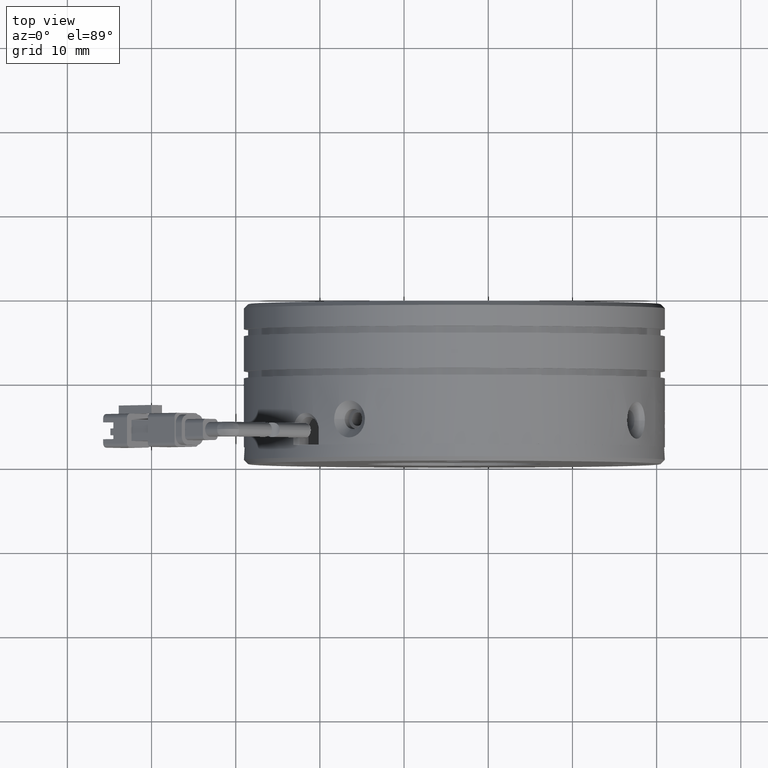
[diagram: clean part render]
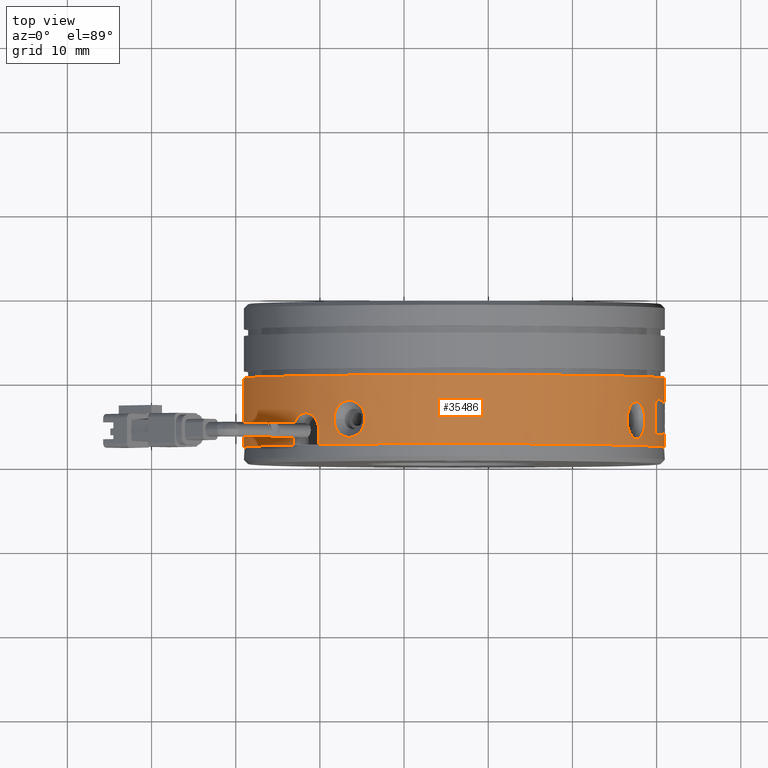
[diagram: same view with one face highlighted and labeled with its STEP entity id]
A machine part, top view. The second image highlights one B-rep face of the part: STEP entity #35486.
In plain terms, the highlighted cylindrical surface (partial cylindrical patch) has radius 25 mm, axis along (0, 1, -0).
Its self-contained STEP definition (entity closure, byte-faithful):
#281 = CARTESIAN_POINT ( 'NONE',  ( 16.49969370802145000, 5.450704225539627900, 14.27249149179714400 ) ) ;
#304 = CARTESIAN_POINT ( 'NONE',  ( -23.15365887617074800, 3.868234147060709100, 16.09738263974287900 ) ) ;
#309 = CARTESIAN_POINT ( 'NONE',  ( 20.87705476061862300, 5.609102189260054800, 2.201566818622008100 ) ) ;
#412 = B_SPLINE_CURVE_WITH_KNOTS ( 'NONE', 3,
 ( #52025, #47149, #42343, #32608, #23208, #13627 ),
 .UNSPECIFIED., .F., .F.,
 ( 4, 2, 4 ),
 ( 0.0000000000000000000, 0.0004568782627625742600, 0.0009137565255251485100 ),
 .UNSPECIFIED. ) ;
#420 = CARTESIAN_POINT ( 'NONE',  ( 20.87788596370502600, 5.418457956970035700, 2.192164721418087000 ) ) ;
#470 = CARTESIAN_POINT ( 'NONE',  ( 17.69360556899350100, 7.368433264077463500, 12.38088597118873800 ) ) ;
#492 = CARTESIAN_POINT ( 'NONE',  ( 20.88036465345308200, 5.228247373744157000, 2.164601830254745600 ) ) ;
#497 = CARTESIAN_POINT ( 'NONE',  ( -22.08857016642111400, 5.902398823811314100, 17.28455030252884900 ) ) ;
#502 = CARTESIAN_POINT ( 'NONE',  ( 20.88780491674813400, 4.957567025291618600, 2.076590511724736300 ) ) ;
#591 = CARTESIAN_POINT ( 'NONE',  ( 20.89088161088547200, 4.870615161154642400, 2.039669229672254100 ) ) ;
#643 = CARTESIAN_POINT ( 'NONE',  ( 20.89836283244108000, 4.705213480888145800, 1.946119186430250500 ) ) ;
#686 = CARTESIAN_POINT ( 'NONE',  ( 18.57482277094220200, 5.730151586680232600, 10.68698712256187900 ) ) ;
#712 = CARTESIAN_POINT ( 'NONE',  ( -20.34431649549471300, 4.930997315751547200, 18.93971509785972900 ) ) ;
#722 = CARTESIAN_POINT ( 'NONE',  ( 20.91228741036614000, 4.490760484947240400, 1.759294332533904300 ) ) ;
#807 = CARTESIAN_POINT ( 'NONE',  ( 20.91751750988560600, 4.430123787750209100, 1.684199697188841100 ) ) ;
#858 = CARTESIAN_POINT ( 'NONE',  ( 20.92789667332636900, 4.330325048378557400, 1.522707774882770600 ) ) ;
#861 = CARTESIAN_POINT ( 'NONE',  ( 20.87940407189934800, 5.976962359149793800, 2.175451335830711000 ) ) ;
#900 = ORIENTED_EDGE ( 'NONE', *, *, #59122, .T. ) ;
#938 = CARTESIAN_POINT ( 'NONE',  ( 20.93302557164789200, 4.290838910140260000, 1.436754254127402800 ) ) ;
#950 = CARTESIAN_POINT ( 'NONE',  ( 20.94762802960901700, 4.198023623593004800, 1.166031697580403300 ) ) ;
#1002 = CARTESIAN_POINT ( 'NONE',  ( -17.72859245220099200, 6.809449854590798900, 20.91036400926800500 ) ) ;
#1030 = CARTESIAN_POINT ( 'NONE',  ( 20.95579129067566600, 4.172427619848157600, 0.9775343910017793000 ) ) ;
#1130 = CARTESIAN_POINT ( 'NONE',  ( 20.80632795550790700, 4.322353943957555300, 2.892143759068543900 ) ) ;
#1133 = CARTESIAN_POINT ( 'NONE',  ( 20.96179658823153200, 4.167271785106379400, 0.7868197189736734200 ) ) ;
#1152 = CARTESIAN_POINT ( 'NONE',  ( 20.69173769991640900, 7.727101298061381100, 3.747320195376608400 ) ) ;
#1201 = CARTESIAN_POINT ( 'NONE',  ( -15.28608940092456200, 6.812443851178450400, 22.32074930630384900 ) ) ;
#1425 = EDGE_CURVE ( 'NONE', #18912, #13572, #40632, .T. ) ;
#2008 =( BOUNDED_CURVE ( )  B_SPLINE_CURVE ( 3, ( #53686, #24838, #29636, #1130 ),
 .UNSPECIFIED., .F., .T. ) 
 B_SPLINE_CURVE_WITH_KNOTS ( ( 4, 4 ),
 ( 1.214634375456130600, 1.216045608819824400 ),
 .UNSPECIFIED. ) 
 CURVE ( )  GEOMETRIC_REPRESENTATION_ITEM ( )  RATIONAL_B_SPLINE_CURVE ( ( 1.000000000000000000, 0.9999998340350396700, 0.9999998340350396700, 1.000000000000000000 ) ) 
 REPRESENTATION_ITEM ( '' )  );
#2038 = CARTESIAN_POINT ( 'NONE',  ( -15.37753228747576600, 3.434670912525519300, 22.27446430140437500 ) ) ;
#2078 = ORIENTED_EDGE ( 'NONE', *, *, #7724, .T. ) ;
#2248 = CARTESIAN_POINT ( 'NONE',  ( -17.88906340043358500, 3.731200340252754700, 20.80432627868077600 ) ) ;
#2647 = EDGE_CURVE ( 'NONE', #43154, #57259, #412, .T. ) ;
#3278 = B_SPLINE_CURVE_WITH_KNOTS ( 'NONE', 3,
 ( #39852, #24547, #861, #34214, #5623, #39087, #10383, #43925, #15179, #48774, #19977, #53609, #24764, #58404 ),
 .UNSPECIFIED., .F., .F.,
 ( 4, 2, 2, 2, 2, 2, 4 ),
 ( 0.0000000000000000000, 0.0005493779126704128600, 0.0008240668690056192300, 0.001098755825340825500, 0.001373444781676031600, 0.001648133738011238000, 0.002197511650681650600 ),
 .UNSPECIFIED. ) ;
#3579 = CARTESIAN_POINT ( 'NONE',  ( 20.97418136128692400, 4.343992379600552000, 3.903127820947816000E-015 ) ) ;
#3807 = B_SPLINE_CURVE_WITH_KNOTS ( 'NONE', 3,
 ( #32137, #56159, #36984, #8330, #41859, #13145, #46662, #17913, #51537, #22721 ),
 .UNSPECIFIED., .F., .F.,
 ( 4, 2, 2, 2, 4 ),
 ( 0.0000000000000000000, 0.0003179315198934416900, 0.0006358630397868833900, 0.0009537945596803250800, 0.001271726079573766800 ),
 .UNSPECIFIED. ) ;
#4100 = CARTESIAN_POINT ( 'NONE',  ( 19.95392310740203700, 7.586409392574980300, 7.069950153807219800 ) ) ;
#4230 = CARTESIAN_POINT ( 'NONE',  ( 20.97418136128692400, 2.168234147060708900, 3.422791846577617100E-015 ) ) ;
#4316 = CARTESIAN_POINT ( 'NONE',  ( -29.02581863871307600, 10.36823414706071000, 3.503328269843786200E-016 ) ) ;
#4452 = CARTESIAN_POINT ( 'NONE',  ( 20.71592161918375300, 3.552825996118543100, 3.585772028101073000 ) ) ;
#4792 = VERTEX_POINT ( 'NONE', #12742 ) ;
#5051 = CARTESIAN_POINT ( 'NONE',  ( 16.55145480666952200, 5.863545360402256700, 14.19783350189262300 ) ) ;
#5075 = CARTESIAN_POINT ( 'NONE',  ( -23.14449475503660700, 4.146309296130733700, 16.10828980770029200 ) ) ;
#5122 =( BOUNDED_CURVE ( )  B_SPLINE_CURVE ( 3, ( #53712, #58504, #29667, #1152 ),
 .UNSPECIFIED., .F., .F. ) 
 B_SPLINE_CURVE_WITH_KNOTS ( ( 4, 4 ),
 ( 4.205308057915881500, 4.323123765252399900 ),
 .UNSPECIFIED. ) 
 CURVE ( )  GEOMETRIC_REPRESENTATION_ITEM ( )  RATIONAL_B_SPLINE_CURVE ( ( 1.000000000000000000, 0.9988436227155569300, 0.9988436227155569300, 1.000000000000000000 ) ) 
 REPRESENTATION_ITEM ( '' )  );
#5259 = CARTESIAN_POINT ( 'NONE',  ( 17.89809453607084700, 7.295351753473156000, 12.01504051928647400 ) ) ;
#5280 = CARTESIAN_POINT ( 'NONE',  ( -21.80205991490096200, 5.968182139651466000, 17.57909132958983300 ) ) ;
#5467 = CARTESIAN_POINT ( 'NONE',  ( 18.60288020821306500, 5.310569730539548100, 10.62741683077895000 ) ) ;
#5497 = CARTESIAN_POINT ( 'NONE',  ( -20.20898563651015300, 4.552142898576375900, 19.05539604868941000 ) ) ;
#5504 = CARTESIAN_POINT ( 'NONE',  ( 16.49214373681054000, 5.168234147060708500, 14.28331964063667500 ) ) ;
#5623 = CARTESIAN_POINT ( 'NONE',  ( 20.88892165538288400, 6.329555947993899400, 2.063394248411451600 ) ) ;
#5654 = CARTESIAN_POINT ( 'NONE',  ( -20.12320127845588400, 2.168234147060708900, 19.12784023745772900 ) ) ;
#5745 = CARTESIAN_POINT ( 'NONE',  ( -17.44719287880389300, 7.065348713122259200, 21.09217571009375200 ) ) ;
#5950 = CARTESIAN_POINT ( 'NONE',  ( -15.03403147190620200, 6.493794031463402800, 22.44604391960373800 ) ) ;
#6117 = EDGE_CURVE ( 'NONE', #57259, #57958, #35498, .T. ) ;
#6603 = CARTESIAN_POINT ( 'NONE',  ( -14.65323546949505000, 5.168234147060708500, 22.62869884692472100 ) ) ;
#6810 = CARTESIAN_POINT ( 'NONE',  ( -15.69198677719024100, 3.199914697282051400, 22.11146839832291300 ) ) ;
#6830 = CARTESIAN_POINT ( 'NONE',  ( -4.025818638713078100, 2.168234147060708900, 3.557538378468061400E-016 ) ) ;
#6968 = CARTESIAN_POINT ( 'NONE',  ( 19.83583963367515000, 6.771028605337383200, 7.457966511842655200 ) ) ;
#7010 = CARTESIAN_POINT ( 'NONE',  ( -18.08497988603602000, 4.080495389426645600, 20.67233954934540600 ) ) ;
#7472 = VERTEX_POINT ( 'NONE', #33112 ) ;
#7724 = EDGE_CURVE ( 'NONE', #52471, #45137, #32704, .T. ) ;
#8299 = EDGE_CURVE ( 'NONE', #62045, #34650, #37417, .T. ) ;
#8330 = CARTESIAN_POINT ( 'NONE',  ( 20.75139536719815000, 7.668332172564756600, 3.331724673585955800 ) ) ;
#8335 = CARTESIAN_POINT ( 'NONE',  ( 20.97330987174664300, 4.233753026814115500, 0.2478836960730578800 ) ) ;
#8819 = EDGE_CURVE ( 'NONE', #11272, #34650, #20738, .T. ) ;
#8870 = CARTESIAN_POINT ( 'NONE',  ( 20.04813707135067000, 7.692719300971801600, 6.742331257744537800 ) ) ;
#9032 = CARTESIAN_POINT ( 'NONE',  ( 20.80222173950301100, 6.975325470166869700, 2.927184821235513800 ) ) ;
#9547 = LINE ( 'NONE', #11063, #34994 ) ;
#9820 = CARTESIAN_POINT ( 'NONE',  ( 16.64551674493932500, 6.252678155458100100, 14.06063607984862600 ) ) ;
#9839 = CARTESIAN_POINT ( 'NONE',  ( -23.10852683928941400, 4.417320938623777100, 16.15088309354623100 ) ) ;
#9848 = CARTESIAN_POINT ( 'NONE',  ( 19.84666469512557500, 4.270296655339604000, 7.423243191193201100 ) ) ;
#10021 = CARTESIAN_POINT ( 'NONE',  ( 18.08383636508810000, 7.138643686605880700, 11.66961234026856800 ) ) ;
#10048 = CARTESIAN_POINT ( 'NONE',  ( -21.50579687645873500, 5.954864241322856500, 17.87369181861150800 ) ) ;
#10251 = CARTESIAN_POINT ( 'NONE',  ( -20.13436099945260700, 4.148847786742488900, 19.11846367888502100 ) ) ;
#10383 = CARTESIAN_POINT ( 'NONE',  ( 20.90004805935840100, 6.570018431110972800, 1.924858273511739200 ) ) ;
#10527 = CARTESIAN_POINT ( 'NONE',  ( -17.01449535450793600, 7.307067707344280900, 21.36259188941210500 ) ) ;
#10644 = CARTESIAN_POINT ( 'NONE',  ( 19.83583963367515000, 6.771028605337383200, 7.457966511842655200 ) ) ;
#10738 = CARTESIAN_POINT ( 'NONE',  ( -14.84080856438471200, 6.128202926223373500, 22.53971264050763800 ) ) ;
#11063 = CARTESIAN_POINT ( 'NONE',  ( -23.15365887617074800, 2.168234147060708900, 16.09738263974287500 ) ) ;
#11272 = VERTEX_POINT ( 'NONE', #55646 ) ;
#11298 = EDGE_CURVE ( 'NONE', #45137, #12806, #46679, .T. ) ;
#11603 = CARTESIAN_POINT ( 'NONE',  ( -16.28003248483973300, 2.968638605293177700, 21.79250202241476900 ) ) ;
#11791 = CARTESIAN_POINT ( 'NONE',  ( -18.22319937025753600, 4.471282925419449900, 20.57758570320166000 ) ) ;
#11967 = VECTOR ( 'NONE', #14107, 1000.000000000000000 ) ;
#12070 = VERTEX_POINT ( 'NONE', #29656 ) ;
#12742 = CARTESIAN_POINT ( 'NONE',  ( -18.30913827934658000, 5.168234147060708500, 20.51796237552582300 ) ) ;
#12806 = VERTEX_POINT ( 'NONE', #9848 ) ;
#13110 = CARTESIAN_POINT ( 'NONE',  ( 18.60288020821306500, 5.168234147060708500, 10.62741683077895000 ) ) ;
#13145 = CARTESIAN_POINT ( 'NONE',  ( 20.78492041092901100, 7.484367568029011200, 3.071442315036851500 ) ) ;
#13151 = AXIS2_PLACEMENT_3D ( 'NONE', #19929, #19849, #19837 ) ;
#13154 = CARTESIAN_POINT ( 'NONE',  ( 20.96608749068509100, 4.168909826900442500, 0.6505503590424089900 ) ) ;
#13227 = ORIENTED_EDGE ( 'NONE', *, *, #11298, .T. ) ;
#13251 = EDGE_LOOP ( 'NONE', ( #60019, #900 ) ) ;
#13354 = CARTESIAN_POINT ( 'NONE',  ( -4.025818638713078100, 2.168234147060708900, 3.557538378468061400E-016 ) ) ;
#13480 = CARTESIAN_POINT ( 'NONE',  ( 19.83532042578147500, 6.890640955822804300, 7.459627710148071200 ) ) ;
#13572 = VERTEX_POINT ( 'NONE', #5504 ) ;
#13590 = VERTEX_POINT ( 'NONE', #60801 ) ;
#13627 = CARTESIAN_POINT ( 'NONE',  ( 20.97418136128692400, 6.800444789837970700, -1.532628191025509100E-012 ) ) ;
#13826 = CARTESIAN_POINT ( 'NONE',  ( 20.80649230467259500, 4.215498894140441000, 2.890732645759488000 ) ) ;
#13946 = CARTESIAN_POINT ( 'NONE',  ( 20.97418136128692400, 2.168234147060708900, 3.422791846577617100E-015 ) ) ;
#14107 = DIRECTION ( 'NONE',  ( -0.0000000000000000000, -1.000000000000000000, 0.0000000000000000000 ) ) ;
#14345 = FACE_BOUND ( 'NONE', #31426, .T. ) ;
#14608 = CARTESIAN_POINT ( 'NONE',  ( 16.77801819992114900, 6.604063016174735300, 13.86397150801986200 ) ) ;
#14639 = CARTESIAN_POINT ( 'NONE',  ( -23.01015800993929600, 4.807389378292063100, 16.26646422124983000 ) ) ;
#14665 = CARTESIAN_POINT ( 'NONE',  ( -20.12320127845588400, 3.868234147060709100, 19.12784023745772900 ) ) ;
#14722 = VERTEX_POINT ( 'NONE', #24091 ) ;
#14815 = CARTESIAN_POINT ( 'NONE',  ( 18.24687894992360200, 6.904954522413447600, 11.35517977204551300 ) ) ;
#14836 = CARTESIAN_POINT ( 'NONE',  ( -21.21419978033957300, 5.863410749034312800, 18.15423479801650300 ) ) ;
#14854 = EDGE_CURVE ( 'NONE', #57958, #50235, #57689, .T. ) ;
#14951 = ORIENTED_EDGE ( 'NONE', *, *, #29027, .T. ) ;
#15048 = CARTESIAN_POINT ( 'NONE',  ( -20.12320127845588400, 3.868234147060709100, 19.12784023745772900 ) ) ;
#15079 = ORIENTED_EDGE ( 'NONE', *, *, #14854, .T. ) ;
#15109 = CARTESIAN_POINT ( 'NONE',  ( -18.29831013050709700, 5.450704225538672200, 20.52551234673670100 ) ) ;
#15179 = CARTESIAN_POINT ( 'NONE',  ( 20.91435893451921400, 6.769918045886480900, 1.730171387064613600 ) ) ;
#15313 = CARTESIAN_POINT ( 'NONE',  ( -16.40670460990310200, 7.368433264074939300, 21.71942420770584200 ) ) ;
#15505 = EDGE_CURVE ( 'NONE', #25540, #18153, #40101, .T. ) ;
#15521 = CARTESIAN_POINT ( 'NONE',  ( -14.71280576127783800, 5.730151586679099300, 22.60064140965391400 ) ) ;
#16176 = CARTESIAN_POINT ( 'NONE',  ( -14.71202863587811500, 4.609861580171056500, 22.60100852563584400 ) ) ;
#16367 = CARTESIAN_POINT ( 'NONE',  ( -16.76751636410810800, 2.982704891746041900, 21.50972586181012100 ) ) ;
#16469 = CARTESIAN_POINT ( 'NONE',  ( -4.025818638713078100, 2.168234147060708900, 3.557538378468061400E-016 ) ) ;
#16503 = AXIS2_PLACEMENT_3D ( 'NONE', #6830, #21182, #45355 ) ;
#16550 = CARTESIAN_POINT ( 'NONE',  ( 20.09562333638090000, 3.518514071261344500, 6.569325463255291100 ) ) ;
#16565 = CARTESIAN_POINT ( 'NONE',  ( -18.29809037719375200, 4.883324966650524100, 20.52566552656925900 ) ) ;
#16737 = CARTESIAN_POINT ( 'NONE',  ( 20.55520230648676600, 3.540260419427072100, 4.662221287666193700 ) ) ;
#16871 = CARTESIAN_POINT ( 'NONE',  ( 20.35347558441148800, 3.529222568154792400, 5.622536013743803600 ) ) ;
#16902 = ORIENTED_EDGE ( 'NONE', *, *, #20971, .T. ) ;
#17823 = DIRECTION ( 'NONE',  ( 0.0000000000000000000, 1.000000000000000000, -0.0000000000000000000 ) ) ;
#17913 = CARTESIAN_POINT ( 'NONE',  ( 20.80049623866927200, 7.189291134846583600, 2.941997479811896600 ) ) ;
#18128 = DIRECTION ( 'NONE',  ( -1.000000000000000000, 0.0000000000000000000, -8.883952601346225300E-016 ) ) ;
#18153 = VERTEX_POINT ( 'NONE', #37601 ) ;
#18299 = CARTESIAN_POINT ( 'NONE',  ( -20.12320127845588400, 2.168234147060708900, 19.12784023745772900 ) ) ;
#18526 = CARTESIAN_POINT ( 'NONE',  ( 20.70010523892593200, 3.551589418287440100, 3.691705350810279300 ) ) ;
#18912 = VERTEX_POINT ( 'NONE', #13110 ) ;
#19400 = CARTESIAN_POINT ( 'NONE',  ( 16.94228590830314500, 6.901797381598576900, 13.61439511632595500 ) ) ;
#19426 = CARTESIAN_POINT ( 'NONE',  ( -22.86313448359084400, 5.157203596066391800, 16.43659839235579100 ) ) ;
#19607 = CARTESIAN_POINT ( 'NONE',  ( 18.38226664315922700, 6.605267953872232300, 11.08545268509664400 ) ) ;
#19633 = CARTESIAN_POINT ( 'NONE',  ( -20.93387569448534400, 5.695068023200311900, 18.41551158478135300 ) ) ;
#19837 = DIRECTION ( 'NONE',  ( -1.000000000000000000, 0.0000000000000000000, -2.168404344971001200E-019 ) ) ;
#19849 = DIRECTION ( 'NONE',  ( -0.0000000000000000000, -1.000000000000000000, 0.0000000000000000000 ) ) ;
#19907 = CARTESIAN_POINT ( 'NONE',  ( -18.22365214060179300, 5.863545360404474500, 20.57727344538528400 ) ) ;
#19929 = CARTESIAN_POINT ( 'NONE',  ( -4.025818638713078100, 10.36823414706071000, 3.557538378468061400E-016 ) ) ;
#19977 = CARTESIAN_POINT ( 'NONE',  ( 20.92977370504883800, 6.914917525791371300, 1.491931396595406400 ) ) ;
#20099 = CARTESIAN_POINT ( 'NONE',  ( -16.04085915799857200, 7.295351753470086500, 21.92391317478444900 ) ) ;
#20301 = CARTESIAN_POINT ( 'NONE',  ( -14.65323546949502800, 5.310569730538961000, 22.62869884692472100 ) ) ;
#20333 = ORIENTED_EDGE ( 'NONE', *, *, #33354, .F. ) ;
#20469 = ORIENTED_EDGE ( 'NONE', *, *, #26415, .T. ) ;
#20621 = DIRECTION ( 'NONE',  ( 0.0000000000000000000, 1.000000000000000000, -0.0000000000000000000 ) ) ;
#20738 = CIRCLE ( 'NONE', #22254, 25.00000000000000000 ) ;
#20820 = CARTESIAN_POINT ( 'NONE',  ( -23.15365887617074800, 3.868234147060709100, 16.09738263974287900 ) ) ;
#20955 = CARTESIAN_POINT ( 'NONE',  ( -14.84041043266527500, 4.209159485327251800, 22.53990379135842700 ) ) ;
#20971 = EDGE_CURVE ( 'NONE', #12806, #59975, #27618, .T. ) ;
#21158 = CARTESIAN_POINT ( 'NONE',  ( -17.11908409202129600, 3.084271499205407000, 21.29749037629700900 ) ) ;
#21182 = DIRECTION ( 'NONE',  ( 0.0000000000000000000, 1.000000000000000000, -0.0000000000000000000 ) ) ;
#21230 = EDGE_CURVE ( 'NONE', #11272, #28372, #61423, .T. ) ;
#21234 = VECTOR ( 'NONE', #41958, 1000.000000000000000 ) ;
#21365 = CARTESIAN_POINT ( 'NONE',  ( -18.30913827934658000, 5.168234147060708500, 20.51796237552582300 ) ) ;
#22254 = AXIS2_PLACEMENT_3D ( 'NONE', #16469, #49396, #49343 ) ;
#22721 = CARTESIAN_POINT ( 'NONE',  ( 20.80222173950301100, 6.975325470166869700, 2.927184821235513800 ) ) ;
#23208 = CARTESIAN_POINT ( 'NONE',  ( 20.97418136128693800, 6.897578184509039400, 0.1188730389780328500 ) ) ;
#23406 = CARTESIAN_POINT ( 'NONE',  ( 20.79772946640480700, 3.906781894013025900, 2.965216046634928200 ) ) ;
#23979 = CARTESIAN_POINT ( 'NONE',  ( 16.49214373681054000, 5.168234147060708500, 14.28331964063667500 ) ) ;
#24091 = CARTESIAN_POINT ( 'NONE',  ( -23.15365887617074800, 2.168234147060708900, 16.09738263974287900 ) ) ;
#24125 = ORIENTED_EDGE ( 'NONE', *, *, #38295, .T. ) ;
#24195 = CARTESIAN_POINT ( 'NONE',  ( 17.13311353318854200, 7.136553596841065600, 13.31600927868854900 ) ) ;
#24220 = CARTESIAN_POINT ( 'NONE',  ( -22.60526305412918500, 5.553400544889773200, 16.72853190384326900 ) ) ;
#24246 = VECTOR ( 'NONE', #17823, 1000.000000000000000 ) ;
#24388 = CARTESIAN_POINT ( 'NONE',  ( 18.48594193204433000, 6.255972904695736000, 10.87319058172666300 ) ) ;
#24415 = CARTESIAN_POINT ( 'NONE',  ( -20.68136559444693000, 5.458929883696363600, 18.64411173662435700 ) ) ;
#24547 = CARTESIAN_POINT ( 'NONE',  ( 20.87745001844171000, 5.794678184446288700, 2.197095886627118900 ) ) ;
#24704 = CARTESIAN_POINT ( 'NONE',  ( -18.08645471855915300, 6.252678155456075100, 20.67133538365412100 ) ) ;
#24764 = CARTESIAN_POINT ( 'NONE',  ( 20.95288993734805800, 7.046151487617727600, 1.048244929156905400 ) ) ;
#24838 = CARTESIAN_POINT ( 'NONE',  ( 20.80359871991109000, 6.091233343084632600, 2.915505433954027800 ) ) ;
#24901 = CARTESIAN_POINT ( 'NONE',  ( -15.69543097898459800, 7.138643686604537700, 22.10965500379962400 ) ) ;
#25029 = ORIENTED_EDGE ( 'NONE', *, *, #43543, .T. ) ;
#25483 = ORIENTED_EDGE ( 'NONE', *, *, #55902, .F. ) ;
#25540 = VERTEX_POINT ( 'NONE', #44618 ) ;
#25739 = CARTESIAN_POINT ( 'NONE',  ( -15.03190300824214500, 3.845971748397708700, 22.44708667876944500 ) ) ;
#25895 = CARTESIAN_POINT ( 'NONE',  ( 19.84306476123924400, 5.104238206659600200, 7.434820255219084300 ) ) ;
#25940 = CARTESIAN_POINT ( 'NONE',  ( -17.44388951805715100, 3.268726398571802200, 21.09427740898540900 ) ) ;
#26415 = EDGE_CURVE ( 'NONE', #59975, #7472, #36190, .T. ) ;
#26852 = ORIENTED_EDGE ( 'NONE', *, *, #36432, .T. ) ;
#27121 = EDGE_CURVE ( 'NONE', #57365, #62045, #35756, .T. ) ;
#27194 = CARTESIAN_POINT ( 'NONE',  ( 20.97418136128692400, 4.343992379600552000, 3.903127820947816000E-015 ) ) ;
#27220 = CARTESIAN_POINT ( 'NONE',  ( -29.02581863871307600, 2.168234147060708900, 3.503328269843786200E-016 ) ) ;
#27316 = CARTESIAN_POINT ( 'NONE',  ( 20.97418136128692400, 4.276070580432401500, 0.1188227910279600600 ) ) ;
#27520 = ORIENTED_EDGE ( 'NONE', *, *, #51078, .T. ) ;
#27618 =( BOUNDED_CURVE ( )  B_SPLINE_CURVE ( 3, ( #30734, #25895, #35584, #6968 ),
 .UNSPECIFIED., .F., .F. ) 
 B_SPLINE_CURVE_WITH_KNOTS ( ( 4, 4 ),
 ( 5.252670096415093000, 5.254124959259855600 ),
 .UNSPECIFIED. ) 
 CURVE ( )  GEOMETRIC_REPRESENTATION_ITEM ( )  RATIONAL_B_SPLINE_CURVE ( ( 1.000000000000000000, 0.9999998236145162300, 0.9999998236145162300, 1.000000000000000000 ) ) 
 REPRESENTATION_ITEM ( '' )  );
#27790 = CARTESIAN_POINT ( 'NONE',  ( 20.95931338662152000, 7.057754947542386000, 0.8620775351437706100 ) ) ;
#27860 = CARTESIAN_POINT ( 'NONE',  ( 19.86141520707894900, 7.235229466027396600, 7.375730050838333400 ) ) ;
#28206 = CARTESIAN_POINT ( 'NONE',  ( 20.77148087331566700, 3.668727483162365700, 3.178070539584975300 ) ) ;
#28250 = ORIENTED_EDGE ( 'NONE', *, *, #54788, .T. ) ;
#28372 = VERTEX_POINT ( 'NONE', #27194 ) ;
#28796 = CARTESIAN_POINT ( 'NONE',  ( 16.49214373681059300, 5.310592553159373200, 14.28331964063693200 ) ) ;
#28819 = CARTESIAN_POINT ( 'NONE',  ( -23.15365653176075600, 4.008483391258333300, 16.09738542550630300 ) ) ;
#29002 = CARTESIAN_POINT ( 'NONE',  ( 17.48289286664563800, 7.367829688830755500, 12.74575344037399900 ) ) ;
#29026 = CARTESIAN_POINT ( 'NONE',  ( -22.18156517021230900, 5.862625744920217500, 17.18677787314306500 ) ) ;
#29027 = EDGE_CURVE ( 'NONE', #13572, #18912, #32993, .T. ) ;
#29209 = CARTESIAN_POINT ( 'NONE',  ( 18.55826659360615600, 5.865185368703899700, 10.72202160174934500 ) ) ;
#29230 = CARTESIAN_POINT ( 'NONE',  ( -20.46310797414493600, 5.158274740992428800, 18.83671148563837500 ) ) ;
#29499 = CARTESIAN_POINT ( 'NONE',  ( -17.88979014672920100, 6.604063016174745100, 20.80383683863671600 ) ) ;
#29636 = CARTESIAN_POINT ( 'NONE',  ( 20.80496745880654800, 5.206909354247938100, 2.903825077959839800 ) ) ;
#29656 = CARTESIAN_POINT ( 'NONE',  ( -14.65323546949505000, 5.168234147060708500, 22.62869884692472100 ) ) ;
#29667 = CARTESIAN_POINT ( 'NONE',  ( 20.54448812933713600, 7.715770117940925500, 4.718587492236568300 ) ) ;
#29707 = CARTESIAN_POINT ( 'NONE',  ( -15.38099841075979800, 6.904954522410837300, 22.27269758863606300 ) ) ;
#30137 = CARTESIAN_POINT ( 'NONE',  ( 16.49214373681054000, 5.168234147060708500, 14.28331964063667500 ) ) ;
#30360 = CARTESIAN_POINT ( 'NONE',  ( -14.65323546949506600, 5.025875740962060700, 22.62869884692471300 ) ) ;
#30363 = B_SPLINE_CURVE_WITH_KNOTS ( 'NONE', 3,
 ( #6603, #30360, #44928, #16176, #49757, #20955, #54608, #25739, #59393, #30559, #2038, #35428, #6810, #40290, #11603, #45140, #16367, #49958, #21158, #54821, #25940, #59601, #30774, #2248, #35624, #7010, #40494, #11791, #45339, #16565, #50164, #21365 ),
 .UNSPECIFIED., .F., .F.,
 ( 4, 2, 2, 2, 2, 2, 2, 2, 2, 2, 2, 2, 2, 2, 2, 4 ),
 ( 2.646761129719343100E-016, 0.0004210204905236232200, 0.0008420409810469817800, 0.001263061471570340500, 0.001684081962093697900, 0.002105102452617055100, 0.002526122943140412100, 0.003368163924187131300, 0.003789184414710484000, 0.004210204905233836200, 0.004631225395757189300, 0.005052245886280541500, 0.005473266376803894600, 0.005894286867327246800, 0.006315307357850599900, 0.006736327848373952100 ),
 .UNSPECIFIED. ) ;
#30539 = CARTESIAN_POINT ( 'NONE',  ( 16.49214373681059000, 5.025852914682782400, 14.28331964063693200 ) ) ;
#30559 = CARTESIAN_POINT ( 'NONE',  ( -15.28333816637533700, 3.527018439530323700, 22.32213222942656800 ) ) ;
#30641 = ORIENTED_EDGE ( 'NONE', *, *, #27121, .T. ) ;
#30734 = CARTESIAN_POINT ( 'NONE',  ( 19.84666469512557500, 4.270296655339604000, 7.423243191193201100 ) ) ;
#30757 = CARTESIAN_POINT ( 'NONE',  ( 16.55176706448653000, 4.471282925418421400, 14.19738073154743100 ) ) ;
#30774 = CARTESIAN_POINT ( 'NONE',  ( -17.72601918836926400, 3.524024442941658300, 20.91205518671894500 ) ) ;
#30959 = CARTESIAN_POINT ( 'NONE',  ( 16.49984688785400200, 4.883324966650096900, 14.27227173848382200 ) ) ;
#31167 = CARTESIAN_POINT ( 'NONE',  ( 16.52970440417000500, 4.606316707441249200, 14.22923604130351500 ) ) ;
#31373 = CARTESIAN_POINT ( 'NONE',  ( 16.61009369884355300, 4.208265367895338100, 14.11246877784738500 ) ) ;
#31426 = EDGE_LOOP ( 'NONE', ( #2078, #13227, #16902, #20469, #24125, #25029, #27520, #28250 ) ) ;
#31482 = ORIENTED_EDGE ( 'NONE', *, *, #8299, .T. ) ;
#31574 = CARTESIAN_POINT ( 'NONE',  ( 16.64652091063050700, 4.080495389425085100, 14.05916124732561600 ) ) ;
#31774 = CARTESIAN_POINT ( 'NONE',  ( 16.73059528489842400, 3.842674262655652900, 13.93473783224368700 ) ) ;
#32137 = CARTESIAN_POINT ( 'NONE',  ( 20.69173769991640900, 7.727101298061381100, 3.747320195376608400 ) ) ;
#32203 = CARTESIAN_POINT ( 'NONE',  ( 16.77850763996618600, 3.731200340250778100, 13.86324476172279300 ) ) ;
#32302 = B_SPLINE_CURVE_WITH_KNOTS ( 'NONE', 3,
 ( #3579, #27316, #8335, #41865, #13154, #46672 ),
 .UNSPECIFIED., .F., .F.,
 ( 4, 2, 4 ),
 ( 0.0006183485914859052900, 0.001024550751776352000, 0.001430752912066798800 ),
 .UNSPECIFIED. ) ;
#32415 = CARTESIAN_POINT ( 'NONE',  ( 16.88623654800459700, 3.524024442939467100, 13.70020054965815600 ) ) ;
#32608 = CARTESIAN_POINT ( 'NONE',  ( 20.97327028733547700, 6.965466480297909200, 0.2599325849102798200 ) ) ;
#32613 = CARTESIAN_POINT ( 'NONE',  ( 17.06845877027141300, 3.268726398569390800, 13.41807087934553000 ) ) ;
#32669 = CARTESIAN_POINT ( 'NONE',  ( 19.92500742630542000, 7.518088387206832500, 7.166890098463923700 ) ) ;
#32704 =( BOUNDED_CURVE ( )  B_SPLINE_CURVE ( 3, ( #18526, #16737, #16871, #16550 ),
 .UNSPECIFIED., .F., .F. ) 
 B_SPLINE_CURVE_WITH_KNOTS ( ( 4, 4 ),
 ( 1.957811909786883800, 2.075496788255711200 ),
 .UNSPECIFIED. ) 
 CURVE ( )  GEOMETRIC_REPRESENTATION_ITEM ( )  RATIONAL_B_SPLINE_CURVE ( ( 1.000000000000000000, 0.9988461887554352900, 0.9988461887554352900, 1.000000000000000000 ) ) 
 REPRESENTATION_ITEM ( '' )  );
#32819 = CARTESIAN_POINT ( 'NONE',  ( 16.94440430273546700, 3.431513771708181200, 13.61113203654564100 ) ) ;
#32993 = B_SPLINE_CURVE_WITH_KNOTS ( 'NONE', 3,
 ( #23979, #28796, #281, #33625, #5051, #38516, #9820, #43334, #14608, #48178, #19400, #53038, #24195, #57827, #29002, #470, #33835, #5259, #38717, #10021, #43554, #14815, #48385, #19607, #53244, #24388, #58028, #29209, #686, #34033, #5467, #38922 ),
 .UNSPECIFIED., .F., .F.,
 ( 4, 2, 2, 2, 2, 2, 2, 2, 2, 2, 2, 2, 2, 2, 2, 4 ),
 ( 0.006736327848383850400, 0.007157280841730630700, 0.007578233835077411900, 0.007999186828424192200, 0.008420139821770972500, 0.008841092815117752900, 0.009262045808464533200, 0.01010395179515810400, 0.01052490478850488500, 0.01094585778185166500, 0.01136681077519844500, 0.01178776376854522700, 0.01220871676189200600, 0.01262966975523878800, 0.01305062274858556800, 0.01347157574193234800 ),
 .UNSPECIFIED. ) ;
#33015 = CARTESIAN_POINT ( 'NONE',  ( 20.73103628832119900, 3.563746544092828200, 3.479756585495014300 ) ) ;
#33028 = CARTESIAN_POINT ( 'NONE',  ( 17.13518960217700400, 3.197824607514775200, 13.31271673206640200 ) ) ;
#33112 = CARTESIAN_POINT ( 'NONE',  ( 20.07991698485157900, 7.694025951035285100, 6.626726948260824200 ) ) ;
#33236 = CARTESIAN_POINT ( 'NONE',  ( 17.27167173758336800, 3.084271499202876100, 13.09326545330914000 ) ) ;
#33354 = EDGE_CURVE ( 'NONE', #13590, #50235, #36994, .T. ) ;
#33453 = CARTESIAN_POINT ( 'NONE',  ( 17.34146826587950600, 3.041116540648629600, 12.97914550008537100 ) ) ;
#33625 = CARTESIAN_POINT ( 'NONE',  ( 16.52921495182295800, 5.726606713952045300, 14.22994253576973900 ) ) ;
#33668 = CARTESIAN_POINT ( 'NONE',  ( 17.48390722309680700, 2.982704891743490600, 12.74169772539541700 ) ) ;
#33835 = CARTESIAN_POINT ( 'NONE',  ( 17.76367820972492600, 7.353763402378422000, 12.25712016207194900 ) ) ;
#33855 = CARTESIAN_POINT ( 'NONE',  ( -21.89854851659338000, 5.955075632080827600, 17.48096675314879900 ) ) ;
#33877 = CARTESIAN_POINT ( 'NONE',  ( 17.55605523754831100, 2.968035030043940200, 12.61913013384975300 ) ) ;
#34033 = CARTESIAN_POINT ( 'NONE',  ( 18.59716401981200900, 5.453143327469620200, 10.63961190634795700 ) ) ;
#34062 = CARTESIAN_POINT ( 'NONE',  ( -20.29250164968922800, 4.807988541936715900, 18.98415224526543500 ) ) ;
#34091 = CARTESIAN_POINT ( 'NONE',  ( 17.76668338370190600, 2.968638605290680100, 12.25421384612630100 ) ) ;
#34214 = CARTESIAN_POINT ( 'NONE',  ( 20.88603314817881400, 6.241713986434950500, 2.097693314780207700 ) ) ;
#34305 = CARTESIAN_POINT ( 'NONE',  ( 17.90400130341472000, 3.029400586774346800, 12.00620890901294200 ) ) ;
#34349 = CARTESIAN_POINT ( 'NONE',  ( -17.64021375503807200, 6.901797381595366200, 20.96810454701685300 ) ) ;
#34501 = CARTESIAN_POINT ( 'NONE',  ( 20.09562333638090000, 3.518514071261344500, 6.569325463255291100 ) ) ;
#34518 = CARTESIAN_POINT ( 'NONE',  ( 18.08564975961050100, 3.199914697279820300, 11.66616813847589300 ) ) ;
#34560 = CARTESIAN_POINT ( 'NONE',  ( -15.11127132381004600, 6.605267953867854500, 22.40808528187215700 ) ) ;
#34650 = VERTEX_POINT ( 'NONE', #5654 ) ;
#34722 = CARTESIAN_POINT ( 'NONE',  ( 18.14352026195060900, 3.271119580996116700, 11.55567286598068900 ) ) ;
#34803 = CARTESIAN_POINT ( 'NONE',  ( 18.24864566269221600, 3.434670912523562600, 11.35171364876088300 ) ) ;
#34908 = AXIS2_PLACEMENT_3D ( 'NONE', #13354, #46886, #18128 ) ;
#34934 = CARTESIAN_POINT ( 'NONE',  ( 18.38265130389213600, 3.732405277945402700, 11.08466544443538900 ) ) ;
#34994 = VECTOR ( 'NONE', #20621, 1000.000000000000000 ) ;
#35010 = CARTESIAN_POINT ( 'NONE',  ( 18.29631359071448000, 3.527018439528486900, 11.25751952766027300 ) ) ;
#35087 = ORIENTED_EDGE ( 'NONE', *, *, #8819, .F. ) ;
#35133 = CARTESIAN_POINT ( 'NONE',  ( 18.42126804005754400, 3.845971748396280100, 11.00608436952663600 ) ) ;
#35209 = CARTESIAN_POINT ( 'NONE',  ( 18.48671709162988100, 4.083790138663709400, 10.87158353246719900 ) ) ;
#35410 = CARTESIAN_POINT ( 'NONE',  ( 18.51408515264668600, 4.209159485326343200, 10.81459179394942200 ) ) ;
#35428 = CARTESIAN_POINT ( 'NONE',  ( -15.58149150469522000, 3.271119580998277200, 22.16933890066294300 ) ) ;
#35486 = ADVANCED_FACE ( 'NONE', ( #52662, #51124, #14345, #38342 ), #45095, .T. ) ;
#35498 = LINE ( 'NONE', #13946, #21234 ) ;
#35584 = CARTESIAN_POINT ( 'NONE',  ( 19.83945640678597400, 5.937815670356529000, 7.446394697477133600 ) ) ;
#35604 = CARTESIAN_POINT ( 'NONE',  ( 18.55850257531843200, 4.472922933716982500, 10.72152479337517100 ) ) ;
#35624 = CARTESIAN_POINT ( 'NONE',  ( -17.96055647095435500, 3.842674262657503900, 20.75641392361313500 ) ) ;
#35756 = B_SPLINE_CURVE_WITH_KNOTS ( 'NONE', 3,
 ( #304, #28819, #5075, #9839, #43356, #14639, #48199, #19426, #53061, #24220, #57848, #29026, #497, #33855, #5280, #38740, #10048, #43580, #14836, #48408, #19633, #53269, #24415, #58052, #29230, #712, #34062, #5497, #38949, #10251, #43789, #15048 ),
 .UNSPECIFIED., .F., .F.,
 ( 4, 2, 2, 2, 2, 2, 2, 2, 2, 2, 2, 2, 2, 2, 2, 4 ),
 ( 0.0000000000000000000, 0.0004147850784103492100, 0.0008295701568206984200, 0.001244355235231047700, 0.001659140313641396800, 0.002488710470462091900, 0.002903495548872441700, 0.003318280627282791500, 0.003733065705693141800, 0.004147850784103491100, 0.004562635862513841400, 0.004977420940924190800, 0.005392206019334541000, 0.005806991097744891200, 0.006221776176155240600, 0.006636561254565591700 ),
 .UNSPECIFIED. ) ;
#35811 = CARTESIAN_POINT ( 'NONE',  ( 18.57518988692417100, 4.609861580170743000, 10.68620999716203800 ) ) ;
#35834 = EDGE_CURVE ( 'NONE', #4792, #12070, #43565, .T. ) ;
#36020 = CARTESIAN_POINT ( 'NONE',  ( 18.60288020821306500, 5.168234147060708500, 10.62741683077895000 ) ) ;
#36190 = B_SPLINE_CURVE_WITH_KNOTS ( 'NONE', 3,
 ( #61289, #13480, #56702, #27860, #61495, #32669, #4100, #37544, #8870, #42405 ),
 .UNSPECIFIED., .F., .F.,
 ( 4, 2, 2, 2, 4 ),
 ( 0.0000000000000000000, 0.0003539154720314069100, 0.0007078309440628138200, 0.001061746416094220800, 0.001415661888125627600 ),
 .UNSPECIFIED. ) ;
#36228 = CARTESIAN_POINT ( 'NONE',  ( 18.60288020821306500, 5.025875740962114900, 10.62741683077895000 ) ) ;
#36432 = EDGE_CURVE ( 'NONE', #14722, #57365, #9547, .T. ) ;
#36984 = CARTESIAN_POINT ( 'NONE',  ( 20.72294487430538400, 7.720135584360512800, 3.536866942930025500 ) ) ;
#36994 = LINE ( 'NONE', #27220, #24246 ) ;
#37417 = LINE ( 'NONE', #18299, #11967 ) ;
#37544 = CARTESIAN_POINT ( 'NONE',  ( 20.01548116783898500, 7.673182049915741500, 6.857704645081670800 ) ) ;
#37601 = CARTESIAN_POINT ( 'NONE',  ( 20.87705476061862300, 5.609102189260054800, 2.201566818622008100 ) ) ;
#37897 = CARTESIAN_POINT ( 'NONE',  ( 20.70010523892593200, 3.551589418287440100, 3.691705350810279300 ) ) ;
#38028 = CIRCLE ( 'NONE', #34908, 25.00000000000000000 ) ;
#38295 = EDGE_CURVE ( 'NONE', #7472, #53305, #5122, .T. ) ;
#38342 = FACE_OUTER_BOUND ( 'NONE', #50764, .T. ) ;
#38494 = CARTESIAN_POINT ( 'NONE',  ( 20.80632795550790700, 4.322353943957555300, 2.892143759068543900 ) ) ;
#38516 = CARTESIAN_POINT ( 'NONE',  ( 16.60984448208526100, 6.127308808794664300, 14.11283338520071800 ) ) ;
#38562 = ORIENTED_EDGE ( 'NONE', *, *, #21230, .T. ) ;
#38717 = CARTESIAN_POINT ( 'NONE',  ( 17.96202705049371000, 7.252196794918648800, 11.89753497607337200 ) ) ;
#38740 = CARTESIAN_POINT ( 'NONE',  ( -21.60607714925738100, 5.968285800082003200, 17.77508696422442100 ) ) ;
#38922 = CARTESIAN_POINT ( 'NONE',  ( 18.60288020821306500, 5.168234147060708500, 10.62741683077895000 ) ) ;
#38949 = CARTESIAN_POINT ( 'NONE',  ( -20.17732077892959100, 4.420308992074748900, 19.08218459828872000 ) ) ;
#39087 = CARTESIAN_POINT ( 'NONE',  ( 20.89592861654322300, 6.493450851701119600, 1.976965728522211100 ) ) ;
#39226 = CARTESIAN_POINT ( 'NONE',  ( -17.34182791739873900, 7.136553596839494400, 21.15893217190342300 ) ) ;
#39402 = CARTESIAN_POINT ( 'NONE',  ( 18.59727774184754500, 4.885764068582154200, 10.63936937206519000 ) ) ;
#39445 = CARTESIAN_POINT ( 'NONE',  ( -14.89900922044263800, 6.255972904694926000, 22.51176057075601400 ) ) ;
#39852 = CARTESIAN_POINT ( 'NONE',  ( 20.87705476061862300, 5.609102189260054800, 2.201566818622008100 ) ) ;
#40101 = B_SPLINE_CURVE_WITH_KNOTS ( 'NONE', 3,
 ( #1133, #1030, #950, #938, #858, #807, #722, #43248, #643, #591, #502, #492, #420, #309 ),
 .UNSPECIFIED., .F., .F.,
 ( 4, 2, 2, 2, 2, 2, 4 ),
 ( 0.0000000000000000000, 0.0005678771313184481400, 0.0008518156969776725300, 0.001135754262636896700, 0.001419692828296120500, 0.001703631393955344600, 0.002271508525273789900 ),
 .UNSPECIFIED. ) ;
#40239 = B_SPLINE_CURVE_WITH_KNOTS ( 'NONE', 3,
 ( #47138, #13826, #52234, #23406, #57053, #28206, #61841, #33015, #4452, #37897 ),
 .UNSPECIFIED., .F., .F.,
 ( 4, 2, 2, 2, 4 ),
 ( 0.0000000000000000000, 0.0003164122747764561100, 0.0006328245495529122200, 0.0009492368243293683300, 0.001265649099105824400 ),
 .UNSPECIFIED. ) ;
#40290 = CARTESIAN_POINT ( 'NONE',  ( -16.03202754772675600, 3.029400586776765300, 21.92981994212739500 ) ) ;
#40494 = CARTESIAN_POINT ( 'NONE',  ( -18.13828741655767000, 4.208265367896728100, 20.63591233755853300 ) ) ;
#40632 = B_SPLINE_CURVE_WITH_KNOTS ( 'NONE', 3,
 ( #36020, #36228, #39402, #35811, #35604, #35410, #35209, #35133, #34934, #35010, #34803, #34722, #34518, #34305, #34091, #33877, #33668, #33453, #33236, #33028, #32613, #32819, #32415, #32203, #31774, #31574, #31373, #30757, #31167, #30959, #30539, #30137 ),
 .UNSPECIFIED., .F., .F.,
 ( 4, 2, 2, 2, 2, 2, 2, 2, 2, 2, 2, 2, 2, 2, 2, 4 ),
 ( 0.0000000000000000000, 0.0004210204905239920600, 0.0008420409810479841200, 0.001263061471571976100, 0.001684081962095968200, 0.002105102452619960400, 0.002526122943143952300, 0.003368163924191932200, 0.003789184414715921900, 0.004210204905239912100, 0.004631225395763901800, 0.005052245886287890600, 0.005473266376811880400, 0.005894286867335871000, 0.006315307357859860700, 0.006736327848383850400 ),
 .UNSPECIFIED. ) ;
#41859 = CARTESIAN_POINT ( 'NONE',  ( 20.76454617324856100, 7.622822966761011900, 3.231770810853996400 ) ) ;
#41865 = CARTESIAN_POINT ( 'NONE',  ( 20.96922909401119400, 4.179863978226496400, 0.5152295101151326300 ) ) ;
#41958 = DIRECTION ( 'NONE',  ( 0.0000000000000000000, 1.000000000000000000, -0.0000000000000000000 ) ) ;
#42234 = ORIENTED_EDGE ( 'NONE', *, *, #55854, .T. ) ;
#42343 = CARTESIAN_POINT ( 'NONE',  ( 20.96842437029928200, 7.045842321053945600, 0.5566223923077282500 ) ) ;
#42405 = CARTESIAN_POINT ( 'NONE',  ( 20.07991698485157900, 7.694025951035285100, 6.626726948260824200 ) ) ;
#43154 = VERTEX_POINT ( 'NONE', #27790 ) ;
#43248 = CARTESIAN_POINT ( 'NONE',  ( 20.90277311825711200, 4.627390521748020900, 1.889328684460540600 ) ) ;
#43334 = CARTESIAN_POINT ( 'NONE',  ( 16.72927336087751400, 6.490496545726958100, 13.93670512000275800 ) ) ;
#43351 = ORIENTED_EDGE ( 'NONE', *, *, #1425, .T. ) ;
#43356 = CARTESIAN_POINT ( 'NONE',  ( -23.08124703949776100, 4.551953622565330100, 16.18312850117861100 ) ) ;
#43543 = EDGE_CURVE ( 'NONE', #53305, #50432, #3807, .T. ) ;
#43554 = CARTESIAN_POINT ( 'NONE',  ( 18.14171031707150300, 7.067741895553196800, 11.55914467098608600 ) ) ;
#43565 = B_SPLINE_CURVE_WITH_KNOTS ( 'NONE', 3,
 ( #43647, #43852, #15109, #48693, #19907, #53544, #24704, #58336, #29499, #1002, #34349, #5745, #39226, #10527, #44056, #15313, #48913, #20099, #53757, #24901, #58543, #29707, #1201, #34560, #5950, #39445, #10738, #44268, #15521, #49103, #20301, #53958 ),
 .UNSPECIFIED., .F., .F.,
 ( 4, 2, 2, 2, 2, 2, 2, 2, 2, 2, 2, 2, 2, 2, 2, 4 ),
 ( 0.006736327848373952100, 0.007157280841719797400, 0.007578233835065643600, 0.007999186828411488900, 0.008420139821757334200, 0.008841092815103179400, 0.009262045808449024700, 0.01010395179514071700, 0.01052490478848655900, 0.01094585778183240200, 0.01136681077517824600, 0.01178776376852408800, 0.01220871676186993300, 0.01262966975521577500, 0.01305062274856161900, 0.01347157574190746200 ),
 .UNSPECIFIED. ) ;
#43580 = CARTESIAN_POINT ( 'NONE',  ( -21.31028945480048300, 5.902323883670129900, 18.06282278677904100 ) ) ;
#43647 = CARTESIAN_POINT ( 'NONE',  ( -18.30913827934658000, 5.168234147060708500, 20.51796237552582300 ) ) ;
#43735 = VERTEX_POINT ( 'NONE', #38494 ) ;
#43789 = CARTESIAN_POINT ( 'NONE',  ( -20.12320389152242900, 4.008487799637806300, 19.12783803838393500 ) ) ;
#43852 = CARTESIAN_POINT ( 'NONE',  ( -18.30913827934684700, 5.310592553159057900, 20.51796237552587600 ) ) ;
#43925 = CARTESIAN_POINT ( 'NONE',  ( 20.90936506518788100, 6.709723024135452200, 1.800145459635815500 ) ) ;
#44056 = CARTESIAN_POINT ( 'NONE',  ( -16.77157207908419100, 7.367829688828209100, 21.50871150536038100 ) ) ;
#44268 = CARTESIAN_POINT ( 'NONE',  ( -14.74784024046485900, 5.865185368701363100, 22.58408523231808100 ) ) ;
#44617 = CARTESIAN_POINT ( 'NONE',  ( 20.70010523892593200, 3.551589418287440100, 3.691705350810279300 ) ) ;
#44618 = CARTESIAN_POINT ( 'NONE',  ( 20.96179658823153200, 4.167271785106379400, 0.7868197189736734200 ) ) ;
#44928 = CARTESIAN_POINT ( 'NONE',  ( -14.66518801078132000, 4.885764068582046700, 22.62309638055918600 ) ) ;
#45095 = CYLINDRICAL_SURFACE ( 'NONE', #16503, 25.00000000000000000 ) ;
#45137 = VERTEX_POINT ( 'NONE', #34501 ) ;
#45140 = CARTESIAN_POINT ( 'NONE',  ( -16.64494877256264300, 2.968035030046488800, 21.58187387626150800 ) ) ;
#45339 = CARTESIAN_POINT ( 'NONE',  ( -18.25505468001353600, 4.606316707442085900, 20.55552304288518400 ) ) ;
#45355 = DIRECTION ( 'NONE',  ( -1.000000000000000000, 0.0000000000000000000, -2.168404344971001200E-019 ) ) ;
#46242 = ORIENTED_EDGE ( 'NONE', *, *, #15505, .T. ) ;
#46438 = EDGE_CURVE ( 'NONE', #18153, #43154, #3278, .T. ) ;
#46662 = CARTESIAN_POINT ( 'NONE',  ( 20.79204319840881600, 7.391545220158218600, 3.012472970116878200 ) ) ;
#46672 = CARTESIAN_POINT ( 'NONE',  ( 20.96179658823153200, 4.167271785106379400, 0.7868197189736734200 ) ) ;
#46679 = B_SPLINE_CURVE_WITH_KNOTS ( 'NONE', 3,
 ( #54448, #54514, #54359, #54234, #54169, #54161, #54113, #54042, #54032, #53970 ),
 .UNSPECIFIED., .F., .F.,
 ( 4, 2, 2, 2, 4 ),
 ( 8.673617379884034500E-019, 0.0003303573432458325600, 0.0006607146864916642600, 0.0009910720297374958500, 0.001321429372983327600 ),
 .UNSPECIFIED. ) ;
#46886 = DIRECTION ( 'NONE',  ( -0.0000000000000000000, -1.000000000000000000, 0.0000000000000000000 ) ) ;
#47138 = CARTESIAN_POINT ( 'NONE',  ( 20.80632795550790700, 4.322353943957555300, 2.892143759068543900 ) ) ;
#47149 = CARTESIAN_POINT ( 'NONE',  ( 20.96461728709808600, 7.059601391237767300, 0.7083574249983168900 ) ) ;
#48178 = CARTESIAN_POINT ( 'NONE',  ( 16.88454537055362800, 6.809449854593079700, 13.70277381348991800 ) ) ;
#48199 = CARTESIAN_POINT ( 'NONE',  ( -22.96658656253767100, 4.928407937045248500, 16.31727751210640100 ) ) ;
#48385 = CARTESIAN_POINT ( 'NONE',  ( 18.29493066758971100, 6.812443851184673900, 11.26027076221360600 ) ) ;
#48408 = CARTESIAN_POINT ( 'NONE',  ( -21.02567440548667200, 5.759779517478713200, 18.33089172081460200 ) ) ;
#48693 = CARTESIAN_POINT ( 'NONE',  ( -18.25576117448013800, 5.726606713949252000, 20.55503359053789200 ) ) ;
#48774 = CARTESIAN_POINT ( 'NONE',  ( 20.92456102762459500, 6.872604662699906400, 1.576231238930150700 ) ) ;
#48913 = CARTESIAN_POINT ( 'NONE',  ( -16.28293880078115300, 7.353763402375156100, 21.78949684844016900 ) ) ;
#49103 = CARTESIAN_POINT ( 'NONE',  ( -14.66543054506434500, 5.453143327471437400, 22.62298265852351900 ) ) ;
#49343 = DIRECTION ( 'NONE',  ( -1.000000000000000000, 0.0000000000000000000, -2.168404344971001200E-019 ) ) ;
#49396 = DIRECTION ( 'NONE',  ( -0.0000000000000000000, -1.000000000000000000, 0.0000000000000000000 ) ) ;
#49757 = CARTESIAN_POINT ( 'NONE',  ( -14.74734343209118700, 4.472922933717506500, 22.58432121403012600 ) ) ;
#49819 = ORIENTED_EDGE ( 'NONE', *, *, #46438, .T. ) ;
#49958 = CARTESIAN_POINT ( 'NONE',  ( -17.00496413879771400, 3.041116540651174200, 21.36728690459303000 ) ) ;
#50164 = CARTESIAN_POINT ( 'NONE',  ( -18.30913827934684000, 5.025852914682995600, 20.51796237552587200 ) ) ;
#50235 = VERTEX_POINT ( 'NONE', #4316 ) ;
#50432 = VERTEX_POINT ( 'NONE', #9032 ) ;
#50764 = EDGE_LOOP ( 'NONE', ( #35087, #38562, #42234, #46242, #49819, #53798, #58444, #15079, #20333, #25483, #26852, #30641, #31482 ) ) ;
#51033 = CARTESIAN_POINT ( 'NONE',  ( 20.69173769991640900, 7.727101298061381100, 3.747320195376608400 ) ) ;
#51067 = CARTESIAN_POINT ( 'NONE',  ( 20.97418136128692400, 10.36823414706071000, 3.422791846577617100E-015 ) ) ;
#51078 = EDGE_CURVE ( 'NONE', #50432, #43735, #2008, .T. ) ;
#51124 = FACE_BOUND ( 'NONE', #51241, .T. ) ;
#51241 = EDGE_LOOP ( 'NONE', ( #14951, #43351 ) ) ;
#51537 = CARTESIAN_POINT ( 'NONE',  ( 20.80205464551932300, 7.082608387632531000, 2.928602092924049000 ) ) ;
#52025 = CARTESIAN_POINT ( 'NONE',  ( 20.95931338662152000, 7.057754947542386000, 0.8620775351437706100 ) ) ;
#52234 = CARTESIAN_POINT ( 'NONE',  ( 20.80532104735072400, 4.110394529499693300, 2.900956501140740800 ) ) ;
#52471 = VERTEX_POINT ( 'NONE', #44617 ) ;
#52662 = FACE_BOUND ( 'NONE', #13251, .T. ) ;
#53038 = CARTESIAN_POINT ( 'NONE',  ( 17.06635707138159600, 7.065348713126894600, 13.42137424008939600 ) ) ;
#53061 = CARTESIAN_POINT ( 'NONE',  ( -22.80305842744484200, 5.264684787827334800, 16.50530670806600500 ) ) ;
#53244 = CARTESIAN_POINT ( 'NONE',  ( 18.42022528089130200, 6.493794031466689100, 11.00821283319181100 ) ) ;
#53269 = CARTESIAN_POINT ( 'NONE',  ( -20.76222766495264000, 5.544889992161891700, 18.57164702542220200 ) ) ;
#53305 = VERTEX_POINT ( 'NONE', #51033 ) ;
#53544 = CARTESIAN_POINT ( 'NONE',  ( -18.13865202391065200, 6.127308808793963600, 20.63566312080048000 ) ) ;
#53609 = CARTESIAN_POINT ( 'NONE',  ( 20.94433259945262200, 7.013857998718211000, 1.233426618746881000 ) ) ;
#53671 = CARTESIAN_POINT ( 'NONE',  ( 20.97418136128692400, 6.800444789837970700, -1.532628191025509100E-012 ) ) ;
#53686 = CARTESIAN_POINT ( 'NONE',  ( 20.80222173950301100, 6.975325470166869700, 2.927184821235513800 ) ) ;
#53712 = CARTESIAN_POINT ( 'NONE',  ( 20.07991698485157900, 7.694025951035285100, 6.626726948260824200 ) ) ;
#53757 = CARTESIAN_POINT ( 'NONE',  ( -15.92335361478682600, 7.252196794915976200, 21.98784568920657600 ) ) ;
#53798 = ORIENTED_EDGE ( 'NONE', *, *, #2647, .T. ) ;
#53958 = CARTESIAN_POINT ( 'NONE',  ( -14.65323546949505000, 5.168234147060708500, 22.62869884692472100 ) ) ;
#53970 = CARTESIAN_POINT ( 'NONE',  ( 19.84666469512557500, 4.270296655339604000, 7.423243191193201100 ) ) ;
#54032 = CARTESIAN_POINT ( 'NONE',  ( 19.84714630419767200, 4.158729657347186600, 7.421694379676511100 ) ) ;
#54042 = CARTESIAN_POINT ( 'NONE',  ( 19.85202578657188300, 4.047051057493446200, 7.406096033444033100 ) ) ;
#54113 = CARTESIAN_POINT ( 'NONE',  ( 19.87641592192254700, 3.841358637256917100, 7.326997738710137900 ) ) ;
#54161 = CARTESIAN_POINT ( 'NONE',  ( 19.89646920286138300, 3.749712273616252000, 7.261681192122790000 ) ) ;
#54169 = CARTESIAN_POINT ( 'NONE',  ( 19.94740035376650100, 3.616148823998059000, 7.091730427038785800 ) ) ;
#54234 = CARTESIAN_POINT ( 'NONE',  ( 19.97734538059273400, 3.574071411257746500, 6.989976477934396500 ) ) ;
#54359 = CARTESIAN_POINT ( 'NONE',  ( 20.03681687962379600, 3.525263045516549900, 6.782420365286029100 ) ) ;
#54448 = CARTESIAN_POINT ( 'NONE',  ( 20.09562333638090000, 3.518514071261344500, 6.569325463255291100 ) ) ;
#54514 = CARTESIAN_POINT ( 'NONE',  ( 20.06643072843969500, 3.517301714363789700, 6.676515737583183200 ) ) ;
#54608 = CARTESIAN_POINT ( 'NONE',  ( -14.89740217118295200, 4.083790138664796600, 22.51253573034167500 ) ) ;
#54788 = EDGE_CURVE ( 'NONE', #43735, #52471, #40239, .T. ) ;
#54821 = CARTESIAN_POINT ( 'NONE',  ( -17.33853537077819600, 3.197824607517237600, 21.16100824089088300 ) ) ;
#55646 = CARTESIAN_POINT ( 'NONE',  ( 20.97418136128692400, 2.168234147060708900, 3.422791846577617100E-015 ) ) ;
#55854 = EDGE_CURVE ( 'NONE', #28372, #25540, #32302, .T. ) ;
#55902 = EDGE_CURVE ( 'NONE', #14722, #13590, #38028, .T. ) ;
#56159 = CARTESIAN_POINT ( 'NONE',  ( 20.70777226571688700, 7.728335193362560100, 3.641555205230386300 ) ) ;
#56702 = CARTESIAN_POINT ( 'NONE',  ( 19.83975723016570900, 7.007721694221303600, 7.445510260095135300 ) ) ;
#57046 = DIRECTION ( 'NONE',  ( 0.0000000000000000000, 1.000000000000000000, -0.0000000000000000000 ) ) ;
#57053 = CARTESIAN_POINT ( 'NONE',  ( 20.79100102779345200, 3.811405283937217000, 3.021863180875926900 ) ) ;
#57259 = VERTEX_POINT ( 'NONE', #53671 ) ;
#57365 = VERTEX_POINT ( 'NONE', #20820 ) ;
#57689 = CIRCLE ( 'NONE', #13151, 25.00000000000000000 ) ;
#57827 = CARTESIAN_POINT ( 'NONE',  ( 17.33677325069954700, 7.307067707347758100, 12.98867671579404300 ) ) ;
#57848 = CARTESIAN_POINT ( 'NONE',  ( -22.44477019011089100, 5.707916284357023300, 16.90585954201937100 ) ) ;
#57958 = VERTEX_POINT ( 'NONE', #51067 ) ;
#58028 = CARTESIAN_POINT ( 'NONE',  ( 18.51389400179506900, 6.128202926228583500, 10.81498992567058400 ) ) ;
#58052 = CARTESIAN_POINT ( 'NONE',  ( -20.53058323718642700, 5.264056279403768600, 18.77772330159782800 ) ) ;
#58336 = CARTESIAN_POINT ( 'NONE',  ( -17.96252375871485200, 6.490496545722555400, 20.75509199959124700 ) ) ;
#58404 = CARTESIAN_POINT ( 'NONE',  ( 20.95931338662152000, 7.057754947542386000, 0.8620775351437706100 ) ) ;
#58444 = ORIENTED_EDGE ( 'NONE', *, *, #6117, .T. ) ;
#58504 = CARTESIAN_POINT ( 'NONE',  ( 20.34031178609684400, 7.704732238312288900, 5.679500921660076300 ) ) ;
#58543 = CARTESIAN_POINT ( 'NONE',  ( -15.58496330969791200, 7.067741895549071200, 22.16752895578523700 ) ) ;
#59122 = EDGE_CURVE ( 'NONE', #12070, #4792, #30363, .T. ) ;
#59393 = CARTESIAN_POINT ( 'NONE',  ( -15.11048408315074500, 3.732405277946984500, 22.40846994260408900 ) ) ;
#59601 = CARTESIAN_POINT ( 'NONE',  ( -17.63695067525691900, 3.431513771710458900, 20.97022294144971600 ) ) ;
#59899 = VECTOR ( 'NONE', #57046, 1000.000000000000000 ) ;
#59975 = VERTEX_POINT ( 'NONE', #10644 ) ;
#60019 = ORIENTED_EDGE ( 'NONE', *, *, #35834, .T. ) ;
#60801 = CARTESIAN_POINT ( 'NONE',  ( -29.02581863871307600, 2.168234147060708900, 3.503328269843786200E-016 ) ) ;
#61289 = CARTESIAN_POINT ( 'NONE',  ( 19.83583963367515000, 6.771028605337383200, 7.457966511842655200 ) ) ;
#61423 = LINE ( 'NONE', #4230, #59899 ) ;
#61495 = CARTESIAN_POINT ( 'NONE',  ( 19.87871199049358100, 7.341923970693583700, 7.319822284560627800 ) ) ;
#61841 = CARTESIAN_POINT ( 'NONE',  ( 20.75882114431203000, 3.620890884786182700, 3.276004059552732000 ) ) ;
#62045 = VERTEX_POINT ( 'NONE', #14665 ) ;